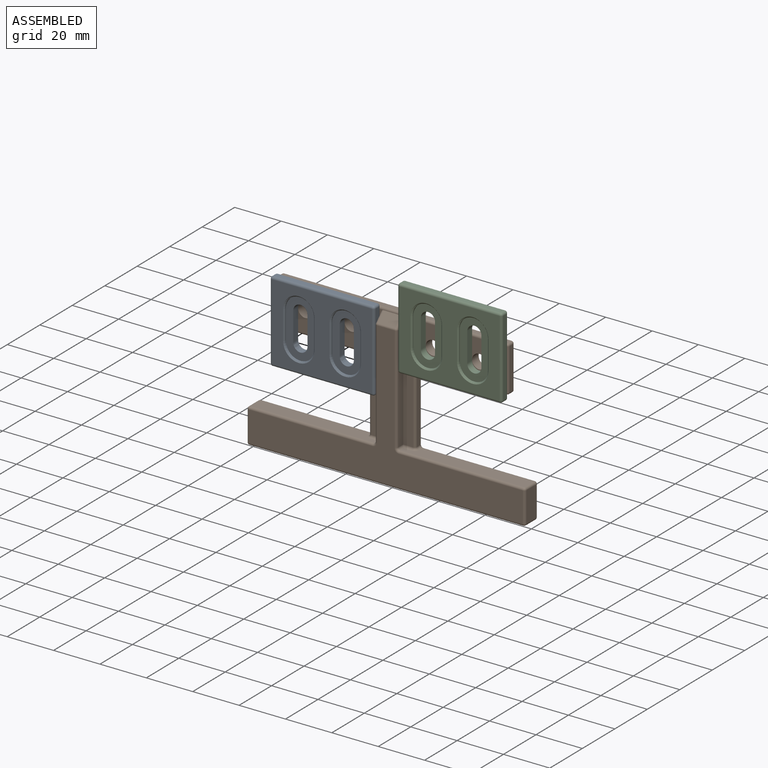
[diagram: assembled view]
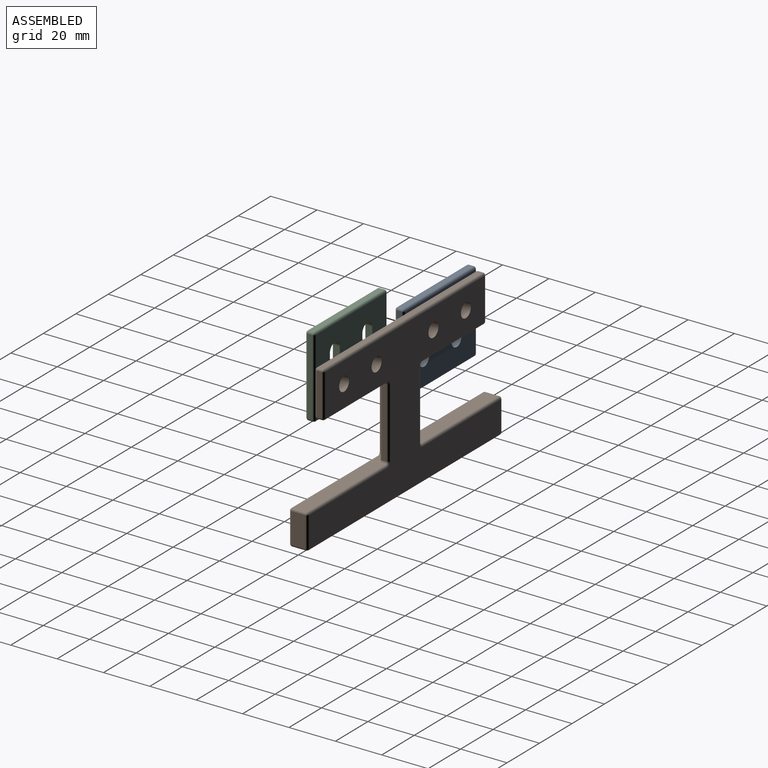
[diagram: assembled view, second angle]
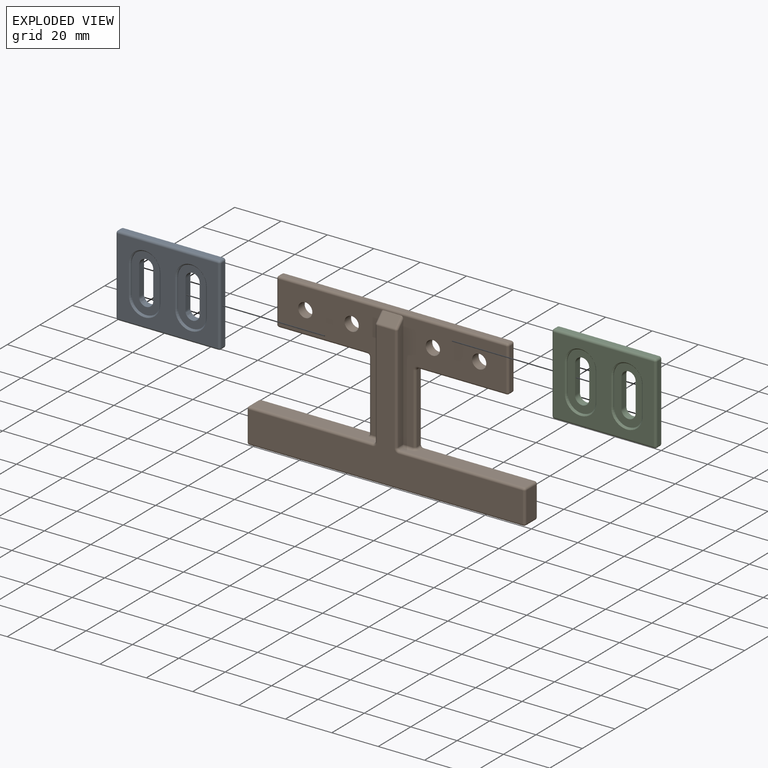
[diagram: exploded view]
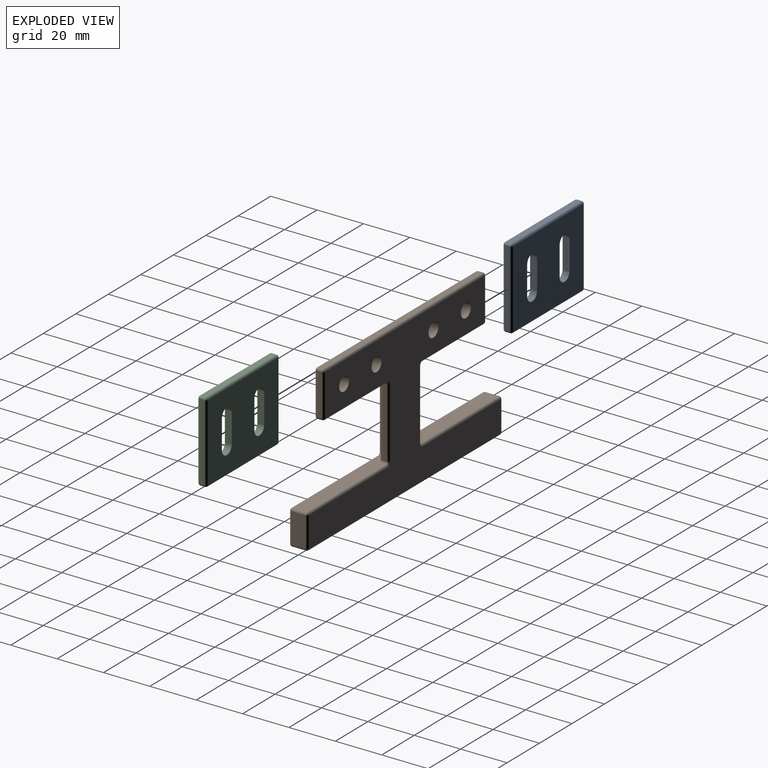
[diagram: exploded view, second angle]
ASSEMBLY  parts=3 mates=4
PART A: 52 faces, bbox 45x4x35 mm
  f0: plane 12.5x3mm, normal (1,0,0), area 37.5mm2, adj f1,f6,f13,f18
  f1: cylinder r=3.05mm len=6.1mm, axis (0,1,0), area 28.7mm2, adj f0,f2,f13,f18
  f2: plane 12.5x3mm, normal (-1,0,0), area 37.5mm2, adj f1,f6,f13,f18
  f3: extruded ~6.1x3.05mm, area 28.7mm2, adj f4,f7,f13,f23
  f4: plane 12.5x3mm, normal (1,0,0), area 37.5mm2, adj f3,f5,f13,f23
  f5: cylinder r=3.05mm len=6.1mm, axis (0,1,0), area 28.7mm2, adj f4,f7,f13,f23
  f6: extruded ~6.1x3.05mm, area 28.7mm2, adj f0,f2,f13,f18
  f7: plane 12.5x3mm, normal (-1,0,0), area 37.5mm2, adj f3,f5,f13,f23
  f8: plane 43x33mm, normal (0,-1,0), area 795.2mm2, adj f27,f28,f37,f38,f44,f45,f46,f47
  f9: plane 43x2mm, normal (0,0,-1), area 86mm2, adj f32,f37,f40,f43
  f10: plane 33x2mm, normal (1,0,0), area 66mm2, adj f29,f38,f39,f43
  f11: plane 43x2mm, normal (0,0,1), area 86mm2, adj f24,f28,f29,f30
  f12: plane 33x2mm, normal (-1,0,0), area 66mm2, adj f24,f27,f31,f32
  f13: plane 43x33mm, normal (0,1,0), area 1208mm2, adj f0,f1,f2,f3,f4,f5,f6,f7
  f14: cylinder r=6.25mm len=12.5mm, axis (0,-1,0), area 9.8mm2, adj f15,f17,f18,f44
  f15: plane 12.5x0.5mm, normal (1,0,0), area 6.2mm2, adj f14,f16,f18,f46
  f16: cylinder r=6.25mm len=12.5mm, axis (0,-1,0), area 9.8mm2, adj f15,f17,f18,f47
  f17: plane 12.5x0.5mm, normal (-1,0,0), area 6.2mm2, adj f14,f16,f18,f45
  f18: plane 25x12.5mm, normal (0,-1,0), area 173.5mm2, adj f0,f1,f2,f6,f14,f15,f16,f17
  f19: cylinder r=6.25mm len=12.5mm, axis (0,-1,0), area 9.8mm2, adj f20,f22,f23,f49
  f20: plane 12.5x0.5mm, normal (1,0,0), area 6.2mm2, adj f19,f21,f23,f51
  f21: cylinder r=6.25mm len=12.5mm, axis (0,-1,0), area 9.8mm2, adj f20,f22,f23,f50
  f22: plane 12.5x0.5mm, normal (-1,0,0), area 6.2mm2, adj f19,f21,f23,f48
  f23: plane 25x12.5mm, normal (0,-1,0), area 173.5mm2, adj f3,f4,f5,f7,f19,f20,f21,f22
  f24: cylinder r=1mm len=2mm, axis (0,-1,0), area 3.1mm2, adj f11,f12,f25,f26
  f25: sphere r=1mm, area 1.6mm2, adj f24,f27,f28
  f26: sphere r=1mm, area 1.6mm2, adj f24,f30,f31
  f27: cylinder r=1mm len=33mm, axis (0,0,1), area 51.8mm2, adj f8,f12,f25,f33
  f28: cylinder r=1mm len=43mm, axis (1,0,0), area 67.5mm2, adj f8,f11,f25,f34
  f29: cylinder r=1mm len=2mm, axis (0,1,0), area 3.1mm2, adj f10,f11,f34,f35
  f30: cylinder r=1mm len=43mm, axis (-1,0,0), area 67.5mm2, adj f11,f13,f26,f35
  f31: cylinder r=1mm len=33mm, axis (0,0,-1), area 51.8mm2, adj f12,f13,f26,f36
  f32: cylinder r=1mm len=2mm, axis (0,1,0), area 3.1mm2, adj f9,f12,f33,f36
  f33: sphere r=1mm, area 1.6mm2, adj f27,f32,f37
  f34: sphere r=1mm, area 1.6mm2, adj f28,f29,f38
  f35: sphere r=1mm, area 1.6mm2, adj f29,f30,f39
  f36: sphere r=1mm, area 1.6mm2, adj f31,f32,f40
  f37: cylinder r=1mm len=43mm, axis (-1,0,0), area 67.5mm2, adj f8,f9,f33,f41
  f38: cylinder r=1mm len=33mm, axis (0,0,-1), area 51.8mm2, adj f8,f10,f34,f41
  f39: cylinder r=1mm len=33mm, axis (0,0,1), area 51.8mm2, adj f10,f13,f35,f42
  f40: cylinder r=1mm len=43mm, axis (1,0,0), area 67.5mm2, adj f9,f13,f36,f42
  f41: sphere r=1mm, area 1.6mm2, adj f37,f38,f43
  f42: sphere r=1mm, area 1.6mm2, adj f39,f40,f43
  f43: cylinder r=1mm len=2mm, axis (0,-1,0), area 3.1mm2, adj f9,f10,f41,f42
  f44: cone r=6.75mm half-angle=45deg, axis (0,-1,0), area 14.4mm2, adj f8,f14,f45,f46
  f45: plane 12.5x0.5mm, normal (-0.71,-0.71,0), area 8.8mm2, adj f8,f17,f44,f47
  f46: plane 12.5x0.5mm, normal (0.71,-0.71,0), area 8.8mm2, adj f8,f15,f44,f47
  f47: cone r=6.75mm half-angle=45deg, axis (0,-1,0), area 14.4mm2, adj f8,f16,f45,f46
  f48: plane 12.5x0.5mm, normal (-0.71,-0.71,0), area 8.8mm2, adj f8,f22,f49,f50
  f49: cone r=6.25mm half-angle=45deg, axis (0,-1,0), area 14.4mm2, adj f8,f19,f48,f51
  f50: cone r=6.25mm half-angle=45deg, axis (0,-1,0), area 14.4mm2, adj f8,f21,f48,f51
  f51: plane 12.5x0.5mm, normal (0.71,-0.71,0), area 8.8mm2, adj f8,f20,f49,f50
PART B: 96 faces, bbox 120x67x8 mm
  f0: plane 50x45.25mm, normal (0,0,1), area 875.2mm2, adj f10,f11,f21,f30,f35,f40,f47,f55
  f1: plane 53.25x6mm, normal (0,1,0), area 299.4mm2, adj f49,f56,f63,f64,f72,f78,f79
  f2: plane 50x45.25mm, normal (0,0,1), area 875.2mm2, adj f9,f13,f20,f35,f46,f62,f71,f77
  f3: plane 38x2mm, normal (0,-1,0), area 76mm2, adj f44,f45,f61,f62
  f4: plane 30x2mm, normal (-1,0,0), area 60mm2, adj f60,f61,f76,f77
  f5: plane 30x2mm, normal (1,0,0), area 60mm2, adj f41,f42,f55,f56
  f6: plane 38x2mm, normal (0,-1,0), area 76mm2, adj f31,f32,f40,f41
  f7: plane 18x2mm, normal (1,0,0), area 36mm2, adj f24,f26,f30,f31
  f8: plane 98x2mm, normal (0,1,0), area 196mm2, adj f25,f26,f34,f35
  f9: cylinder r=3.05mm len=6.1mm, axis (0,0,-1), area 76.7mm2, adj f2,f14
  f10: cylinder r=3.05mm len=6.1mm, axis (0,0,-1), area 76.7mm2, adj f0,f14
  f11: cylinder r=3.05mm len=6.1mm, axis (0,0,-1), area 76.7mm2, adj f0,f14
  f12: plane 18x2mm, normal (-1,0,0), area 36mm2, adj f33,f34,f45,f46
  f13: cylinder r=3.05mm len=6.1mm, axis (0,0,-1), area 76.7mm2, adj f2,f14
  f14: plane 118x65mm, normal (0,0,-1), area 3796.5mm2, adj f9,f10,f11,f13,f24,f25,f32,f33
  f15: plane 53.25x6mm, normal (0,1,0), area 299.4mm2, adj f69,f76,f81,f82,f85,f88,f89
  f16: plane 13x6mm, normal (-1,0,0), area 78mm2, adj f67,f68,f80,f81
  f17: plane 118x6mm, normal (0,-1,0), area 708mm2, adj f51,f52,f66,f67
  f18: plane 13x6mm, normal (1,0,0), area 78mm2, adj f50,f51,f64,f65
  f19: plane 118x60.59mm, normal (0,0,1), area 1892.6mm2, adj f65,f66,f79,f80,f83,f87,f88,f91
  f20: plane 48.59x3mm, normal (-1,0,0), area 141.3mm2, adj f2,f89,f93,f95
  f21: plane 48.59x3mm, normal (1,0,0), area 141.3mm2, adj f0,f78,f86,f87
  f22: plane 7.5x3.71mm, normal (0,0.71,0.71), area 39.3mm2, adj f35,f86,f92,f95
  f23: sphere r=1mm, area 1.6mm2, adj f24,f25,f26
  f24: cylinder r=1mm len=18mm, axis (0,1,0), area 28.3mm2, adj f7,f14,f23,f27
  f25: cylinder r=1mm len=98mm, axis (-1,0,0), area 153.9mm2, adj f8,f14,f23,f28
  f26: cylinder r=1mm len=2mm, axis (0,0,-1), area 3.1mm2, adj f7,f8,f23,f29
  f27: sphere r=1mm, area 1.6mm2, adj f24,f31,f32
  f28: sphere r=1mm, area 1.6mm2, adj f25,f33,f34
  f29: sphere r=1mm, area 1.6mm2, adj f26,f30,f35
  f30: cylinder r=1mm len=18mm, axis (0,-1,0), area 28.3mm2, adj f0,f7,f29,f36
  f31: cylinder r=1mm len=2mm, axis (0,0,1), area 3.1mm2, adj f6,f7,f27,f36
  f32: cylinder r=1mm len=38mm, axis (1,0,0), area 59.7mm2, adj f6,f14,f27,f37
  f33: cylinder r=1mm len=18mm, axis (0,-1,0), area 28.3mm2, adj f12,f14,f28,f38
  f34: cylinder r=1mm len=2mm, axis (0,0,1), area 3.1mm2, adj f8,f12,f28,f39
  f35: cylinder r=1mm len=98mm, axis (1,0,0), area 153.9mm2, adj f0,f2,f8,f22,f29,f39
  f36: sphere r=1mm, area 1.6mm2, adj f30,f31,f40
  f37: torus R=2mm, axis (0,0,1), area 3.4mm2, adj f14,f32,f41,f42
  f38: sphere r=1mm, area 1.6mm2, adj f33,f44,f45
  f39: sphere r=1mm, area 1.6mm2, adj f34,f35,f46
  f40: cylinder r=1mm len=38mm, axis (-1,0,0), area 59.7mm2, adj f0,f6,f36,f47
  f41: cylinder r=1mm len=2mm, axis (0,0,-1), area 3.1mm2, adj f5,f6,f37,f47
  f42: cylinder r=1mm len=30mm, axis (0,1,0), area 47.1mm2, adj f5,f14,f37,f48
  f43: sphere r=1mm, area 1.6mm2, adj f50,f51,f52
  f44: cylinder r=1mm len=38mm, axis (1,0,0), area 59.7mm2, adj f3,f14,f38,f53
  f45: cylinder r=1mm len=2mm, axis (0,0,-1), area 3.1mm2, adj f3,f12,f38,f54
  f46: cylinder r=1mm len=18mm, axis (0,1,0), area 28.3mm2, adj f2,f12,f39,f54
  f47: torus R=2mm, axis (0,0,1), area 3.4mm2, adj f0,f40,f41,f55
  f48: torus R=2mm, axis (0,0,1), area 3.4mm2, adj f14,f42,f49,f56
  f49: cylinder r=1mm len=48mm, axis (-1,0,0), area 75.4mm2, adj f1,f14,f48,f57
  f50: cylinder r=1mm len=13mm, axis (0,1,0), area 20.4mm2, adj f14,f18,f43,f57
  f51: cylinder r=1mm len=6mm, axis (0,0,1), area 9.4mm2, adj f17,f18,f43,f58
  f52: cylinder r=1mm len=118mm, axis (1,0,0), area 185.4mm2, adj f14,f17,f43,f59
  f53: torus R=2mm, axis (0,0,1), area 3.4mm2, adj f14,f44,f60,f61
  f54: sphere r=1mm, area 1.6mm2, adj f45,f46,f62
  f55: cylinder r=1mm len=30mm, axis (0,-1,0), area 47.1mm2, adj f0,f5,f47,f63
  f56: cylinder r=1mm len=2mm, axis (0,0,1), area 3.1mm2, adj f1,f5,f48,f63
  f57: sphere r=1mm, area 1.6mm2, adj f49,f50,f64
  f58: sphere r=1mm, area 1.6mm2, adj f51,f65,f66
  f59: sphere r=1mm, area 1.6mm2, adj f52,f67,f68
  f60: cylinder r=1mm len=30mm, axis (0,-1,0), area 47.1mm2, adj f4,f14,f53,f70
  f61: cylinder r=1mm len=2mm, axis (0,0,1), area 3.1mm2, adj f3,f4,f53,f71
  f62: cylinder r=1mm len=38mm, axis (-1,0,0), area 59.7mm2, adj f2,f3,f54,f71
  f63: torus R=2mm, axis (0,-1,0), area 3.4mm2, adj f1,f55,f56,f72
  f64: cylinder r=1mm len=6mm, axis (0,0,-1), area 9.4mm2, adj f1,f18,f57,f73
  f65: cylinder r=1mm len=13mm, axis (0,-1,0), area 20.4mm2, adj f18,f19,f58,f73
  f66: cylinder r=1mm len=118mm, axis (-1,0,0), area 185.4mm2, adj f17,f19,f58,f74
  f67: cylinder r=1mm len=6mm, axis (0,0,-1), area 9.4mm2, adj f16,f17,f59,f74
  f68: cylinder r=1mm len=13mm, axis (0,-1,0), area 20.4mm2, adj f14,f16,f59,f75
  f69: cylinder r=1mm len=48mm, axis (-1,0,0), area 75.4mm2, adj f14,f15,f70,f75
  f70: torus R=2mm, axis (0,0,1), area 3.4mm2, adj f14,f60,f69,f76
  f71: torus R=2mm, axis (0,0,1), area 3.4mm2, adj f2,f61,f62,f77
  f72: cylinder r=1mm len=4.25mm, axis (-1,0,0), area 6.1mm2, adj f0,f1,f63,f78
  f73: sphere r=1mm, area 1.6mm2, adj f64,f65,f79
  f74: sphere r=1mm, area 1.6mm2, adj f66,f67,f80
  f75: sphere r=1mm, area 1.6mm2, adj f68,f69,f81
  f76: cylinder r=1mm len=2mm, axis (0,0,-1), area 3.1mm2, adj f4,f15,f70,f82
  f77: cylinder r=1mm len=30mm, axis (0,1,0), area 47.1mm2, adj f2,f4,f71,f82
  f78: cylinder r=1mm len=3mm, axis (0,0,1), area 4.1mm2, adj f1,f21,f72,f83
  f79: cylinder r=1mm len=53.25mm, axis (1,0,0), area 83.6mm2, adj f1,f19,f73,f83
  f80: cylinder r=1mm len=13mm, axis (0,1,0), area 20.4mm2, adj f16,f19,f74,f84
  f81: cylinder r=1mm len=6mm, axis (0,0,1), area 9.4mm2, adj f15,f16,f75,f84
  f82: torus R=2mm, axis (0,-1,0), area 3.4mm2, adj f15,f76,f77,f85
  f83: torus R=2mm, axis (0,0,1), area 3.4mm2, adj f19,f78,f79,f87
  f84: sphere r=1mm, area 1.6mm2, adj f80,f81,f88
  f85: cylinder r=1mm len=4.25mm, axis (-1,0,0), area 6.1mm2, adj f2,f15,f82,f89
  f86: cylinder r=1mm len=4.41mm, axis (0,-0.71,0.71), area 7.7mm2, adj f0,f21,f22,f90
  f87: cylinder r=1mm len=45.59mm, axis (0,-1,0), area 71.6mm2, adj f19,f21,f83,f90
  f88: cylinder r=1mm len=53.25mm, axis (1,0,0), area 83.6mm2, adj f15,f19,f84,f91
  f89: cylinder r=1mm len=3mm, axis (0,0,-1), area 4.1mm2, adj f15,f20,f85,f91
  f90: sphere r=1mm, area 0.8mm2, adj f86,f87,f92
  f91: torus R=2mm, axis (0,0,1), area 3.4mm2, adj f19,f88,f89,f93
  f92: cylinder r=1mm len=7.5mm, axis (1,0,0), area 5.9mm2, adj f19,f22,f90,f94
  f93: cylinder r=1mm len=45.59mm, axis (0,1,0), area 71.6mm2, adj f19,f20,f91,f94
  f94: sphere r=1mm, area 0.8mm2, adj f92,f93,f95
  f95: cylinder r=1mm len=4.41mm, axis (0,-0.71,0.71), area 7.7mm2, adj f2,f20,f22,f94
PART C: same geometry as A
PLACE A rot(axis=(0,-1,0),0deg) t=(-5,0,33.42)mm
PLACE B rot(axis=(1,0,0),90deg) t=(60,4,0)mm
PLACE C rot(axis=(0,-1,0),180deg) t=(5,0,80.35)mm
MATE planar C.f13 <-> B.f10  axis (0,1,0) through (37.5,0,72.15)mm
MATE planar C.f12 <-> B.f7  axis (1,0,0) through (50,-2,62.85)mm
MATE planar A.f13 <-> B.f2  axis (0,1,0) through (-27.5,0,50.92)mm
MATE planar A.f12 <-> B.f12  axis (-1,0,0) through (-50,-2,50.92)mm
